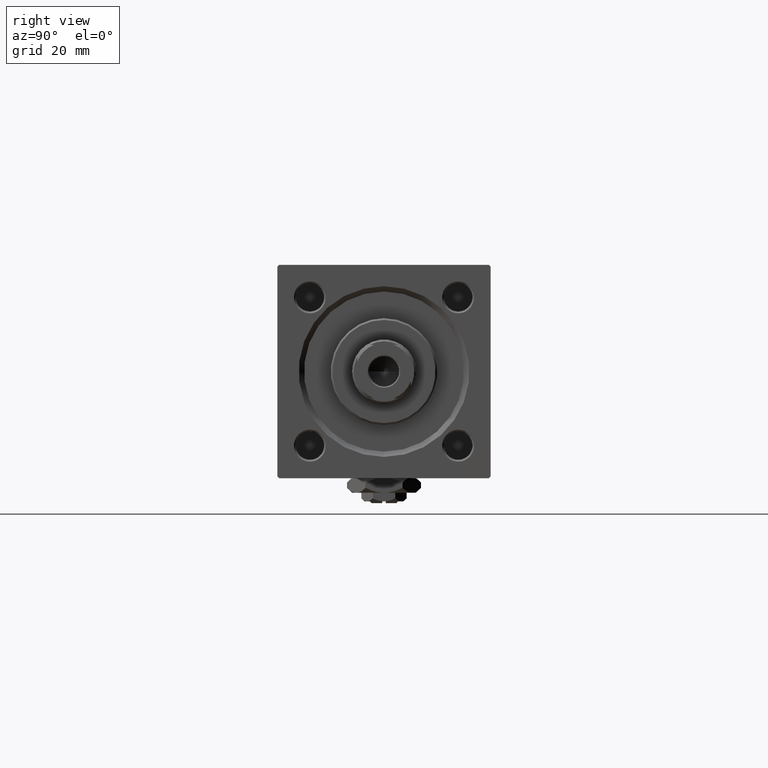
[diagram: clean part render]
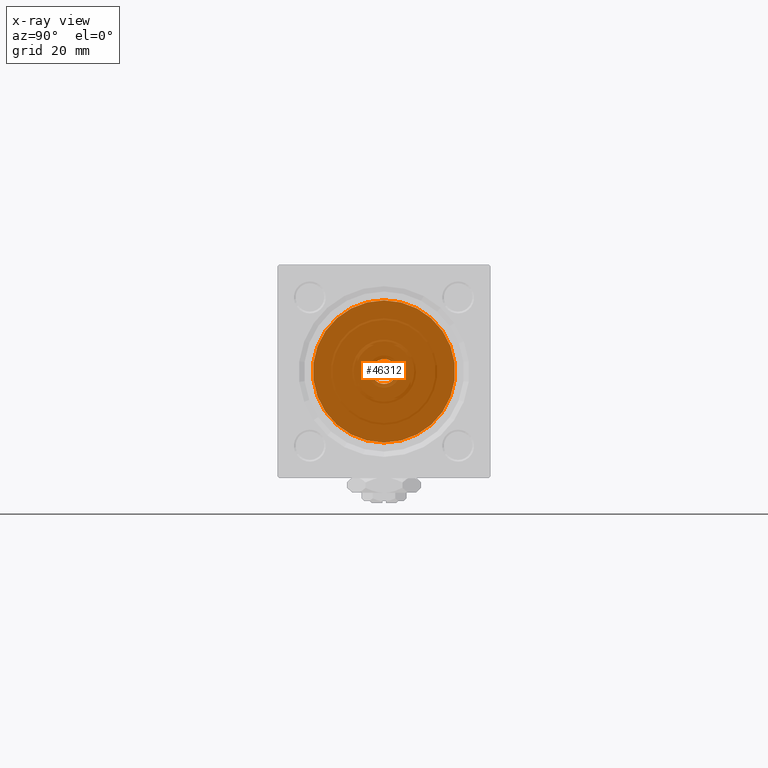
[diagram: x-ray — body ghosted, one internal face saturated and labeled with its STEP entity id]
A machine part, right view, then the same camera in x-ray: the body is ghosted and one INTERNAL B-rep face — a face not visible from any outside direction — is saturated and labeled: STEP entity #46312.
In plain terms, the highlighted planar face has unit normal (-1, 0, 0).
Its self-contained STEP definition (entity closure, byte-faithful):
#3103 = CARTESIAN_POINT ( 'NONE',  ( 37.00000000000000000, 0.000000000000000000, 0.000000000000000000 ) ) ;
#4819 = EDGE_CURVE ( 'NONE', #51786, #9234, #37248, .T. ) ;
#6458 = EDGE_LOOP ( 'NONE', ( #42750, #51710 ) ) ;
#7022 = CARTESIAN_POINT ( 'NONE',  ( 37.00000000000000711, 0.000000000000000000, 0.000000000000000000 ) ) ;
#7591 = PLANE ( 'NONE',  #32329 ) ;
#7809 = DIRECTION ( 'NONE',  ( -1.000000000000000000, 0.000000000000000000, -0.000000000000000000 ) ) ;
#8988 = CIRCLE ( 'NONE', #25860, 20.00000000000000000 ) ;
#9234 = VERTEX_POINT ( 'NONE', #21025 ) ;
#13578 = DIRECTION ( 'NONE',  ( 1.000000000000000000, 0.000000000000000000, 0.000000000000000000 ) ) ;
#14962 = DIRECTION ( 'NONE',  ( -1.000000000000000000, 0.000000000000000000, -0.000000000000000000 ) ) ;
#15959 = CARTESIAN_POINT ( 'NONE',  ( 37.00000000000000000, -1.527916156705046464E-16, -20.00000000000000000 ) ) ;
#16402 = VERTEX_POINT ( 'NONE', #19431 ) ;
#19209 = FACE_OUTER_BOUND ( 'NONE', #22717, .T. ) ;
#19431 = CARTESIAN_POINT ( 'NONE',  ( 37.00000000000000000, -2.602085213965210642E-15, 20.00000000000000000 ) ) ;
#21025 = CARTESIAN_POINT ( 'NONE',  ( 37.00000000000000711, 0.000000000000000000, 3.500000000000000000 ) ) ;
#21578 = DIRECTION ( 'NONE',  ( 1.000000000000000000, 0.000000000000000000, 0.000000000000000000 ) ) ;
#22717 = EDGE_LOOP ( 'NONE', ( #34226, #29094 ) ) ;
#23175 = DIRECTION ( 'NONE',  ( -1.000000000000000000, 0.000000000000000000, -0.000000000000000000 ) ) ;
#24067 = AXIS2_PLACEMENT_3D ( 'NONE', #41660, #21578, #37703 ) ;
#25860 = AXIS2_PLACEMENT_3D ( 'NONE', #42099, #13578, #46329 ) ;
#26147 = EDGE_CURVE ( 'NONE', #39965, #16402, #8988, .T. ) ;
#27098 = DIRECTION ( 'NONE',  ( 0.000000000000000000, 0.000000000000000000, 1.000000000000000000 ) ) ;
#28152 = CARTESIAN_POINT ( 'NONE',  ( 37.00000000000000711, 0.000000000000000000, 0.000000000000000000 ) ) ;
#29094 = ORIENTED_EDGE ( 'NONE', *, *, #26147, .T. ) ;
#31988 = CIRCLE ( 'NONE', #45497, 3.500000000000000000 ) ;
#32329 = AXIS2_PLACEMENT_3D ( 'NONE', #3103, #23175, #39561 ) ;
#32836 = EDGE_CURVE ( 'NONE', #9234, #51786, #31988, .T. ) ;
#34226 = ORIENTED_EDGE ( 'NONE', *, *, #49993, .T. ) ;
#36346 = DIRECTION ( 'NONE',  ( 0.000000000000000000, 0.000000000000000000, 1.000000000000000000 ) ) ;
#37248 = CIRCLE ( 'NONE', #47392, 3.500000000000000000 ) ;
#37703 = DIRECTION ( 'NONE',  ( 0.000000000000000000, 0.000000000000000000, -1.000000000000000000 ) ) ;
#39561 = DIRECTION ( 'NONE',  ( -0.000000000000000000, 0.000000000000000000, 1.000000000000000000 ) ) ;
#39965 = VERTEX_POINT ( 'NONE', #15959 ) ;
#40108 = CIRCLE ( 'NONE', #24067, 20.00000000000000000 ) ;
#41660 = CARTESIAN_POINT ( 'NONE',  ( 37.00000000000000000, -2.602085213965210642E-15, 0.000000000000000000 ) ) ;
#42099 = CARTESIAN_POINT ( 'NONE',  ( 37.00000000000000000, -2.602085213965210642E-15, 0.000000000000000000 ) ) ;
#42584 = CARTESIAN_POINT ( 'NONE',  ( 37.00000000000000711, 4.286263797015736595E-16, -3.500000000000000000 ) ) ;
#42750 = ORIENTED_EDGE ( 'NONE', *, *, #32836, .T. ) ;
#45497 = AXIS2_PLACEMENT_3D ( 'NONE', #28152, #7809, #36346 ) ;
#46312 = ADVANCED_FACE ( 'NONE', ( #52251, #19209 ), #7591, .F. ) ;
#46329 = DIRECTION ( 'NONE',  ( 0.000000000000000000, 0.000000000000000000, -1.000000000000000000 ) ) ;
#47392 = AXIS2_PLACEMENT_3D ( 'NONE', #7022, #14962, #27098 ) ;
#49993 = EDGE_CURVE ( 'NONE', #16402, #39965, #40108, .T. ) ;
#51710 = ORIENTED_EDGE ( 'NONE', *, *, #4819, .T. ) ;
#51786 = VERTEX_POINT ( 'NONE', #42584 ) ;
#52251 = FACE_BOUND ( 'NONE', #6458, .T. ) ;